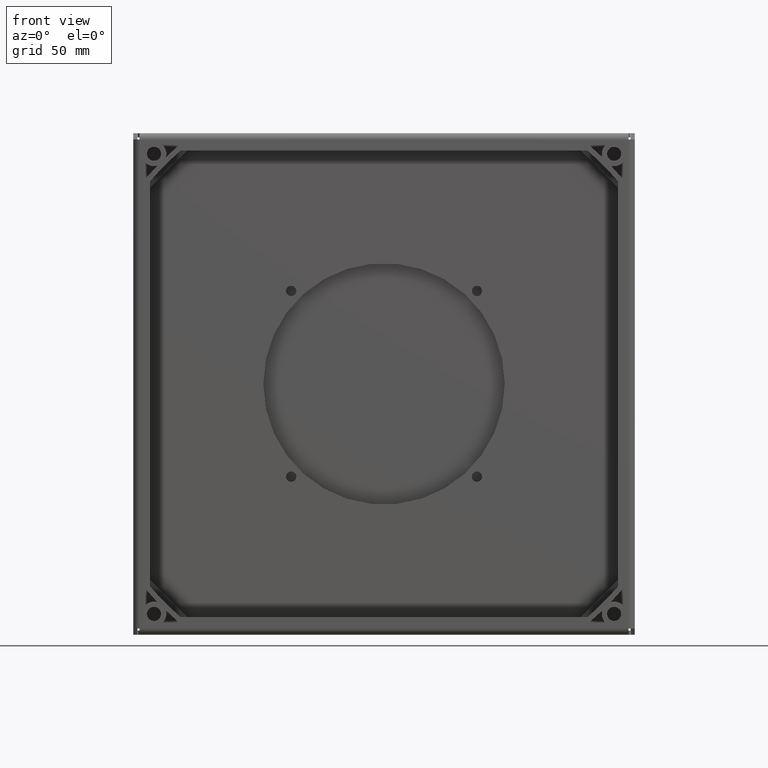
[diagram: clean part render]
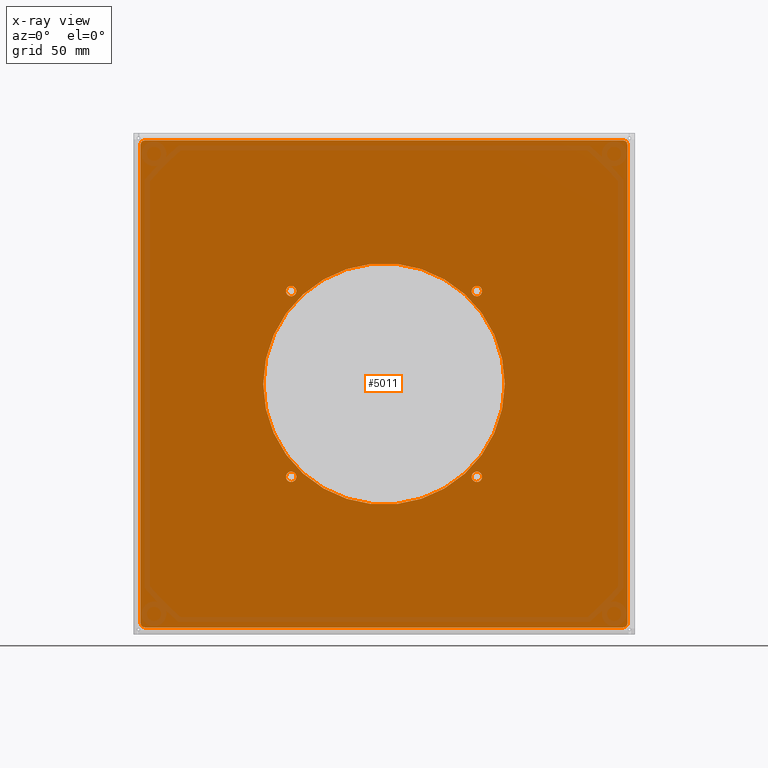
[diagram: x-ray — body ghosted, one internal face saturated and labeled with its STEP entity id]
A machine part, front view, then the same camera in x-ray: the body is ghosted and one INTERNAL B-rep face — a face not visible from any outside direction — is saturated and labeled: STEP entity #5011.
In plain terms, the highlighted planar face has unit normal (0, -1, 0).
Its self-contained STEP definition (entity closure, byte-faithful):
#4642=CARTESIAN_POINT('',(0.E0,0.E0,0.E0));
#4643=DIRECTION('',(0.E0,-1.E0,0.E0));
#4644=DIRECTION('',(1.E0,0.E0,0.E0));
#4645=AXIS2_PLACEMENT_3D('',#4642,#4643,#4644);
#4647=CARTESIAN_POINT('',(0.E0,0.E0,0.E0));
#4648=DIRECTION('',(0.E0,-1.E0,0.E0));
#4649=DIRECTION('',(-1.E0,0.E0,0.E0));
#4650=AXIS2_PLACEMENT_3D('',#4647,#4648,#4649);
#4652=CARTESIAN_POINT('',(-4.5E1,0.E0,-4.5E1));
#4653=DIRECTION('',(0.E0,-1.E0,0.E0));
#4654=DIRECTION('',(1.E0,0.E0,0.E0));
#4655=AXIS2_PLACEMENT_3D('',#4652,#4653,#4654);
#4657=CARTESIAN_POINT('',(-4.5E1,0.E0,-4.5E1));
#4658=DIRECTION('',(0.E0,-1.E0,0.E0));
#4659=DIRECTION('',(-1.E0,0.E0,0.E0));
#4660=AXIS2_PLACEMENT_3D('',#4657,#4658,#4659);
#4662=CARTESIAN_POINT('',(-4.5E1,0.E0,4.5E1));
#4663=DIRECTION('',(0.E0,-1.E0,0.E0));
#4664=DIRECTION('',(1.E0,0.E0,0.E0));
#4665=AXIS2_PLACEMENT_3D('',#4662,#4663,#4664);
#4667=CARTESIAN_POINT('',(-4.5E1,0.E0,4.5E1));
#4668=DIRECTION('',(0.E0,-1.E0,0.E0));
#4669=DIRECTION('',(-1.E0,0.E0,0.E0));
#4670=AXIS2_PLACEMENT_3D('',#4667,#4668,#4669);
#4672=CARTESIAN_POINT('',(4.5E1,0.E0,4.5E1));
#4673=DIRECTION('',(0.E0,-1.E0,0.E0));
#4674=DIRECTION('',(1.E0,0.E0,0.E0));
#4675=AXIS2_PLACEMENT_3D('',#4672,#4673,#4674);
#4677=CARTESIAN_POINT('',(4.5E1,0.E0,4.5E1));
#4678=DIRECTION('',(0.E0,-1.E0,0.E0));
#4679=DIRECTION('',(-1.E0,0.E0,0.E0));
#4680=AXIS2_PLACEMENT_3D('',#4677,#4678,#4679);
#4682=CARTESIAN_POINT('',(4.5E1,0.E0,-4.5E1));
#4683=DIRECTION('',(0.E0,-1.E0,0.E0));
#4684=DIRECTION('',(1.E0,0.E0,0.E0));
#4685=AXIS2_PLACEMENT_3D('',#4682,#4683,#4684);
#4687=CARTESIAN_POINT('',(4.5E1,0.E0,-4.5E1));
#4688=DIRECTION('',(0.E0,-1.E0,0.E0));
#4689=DIRECTION('',(-1.E0,0.E0,0.E0));
#4690=AXIS2_PLACEMENT_3D('',#4687,#4688,#4689);
#4692=CARTESIAN_POINT('',(-1.16E2,0.E0,-1.16E2));
#4693=DIRECTION('',(0.E0,1.E0,0.E0));
#4694=DIRECTION('',(0.E0,0.E0,-1.E0));
#4695=AXIS2_PLACEMENT_3D('',#4692,#4693,#4694);
#4697=DIRECTION('',(0.E0,0.E0,1.E0));
#4698=VECTOR('',#4697,2.32E2);
#4699=CARTESIAN_POINT('',(-1.18E2,0.E0,-1.16E2));
#4700=LINE('',#4699,#4698);
#4701=CARTESIAN_POINT('',(-1.16E2,0.E0,1.16E2));
#4702=DIRECTION('',(0.E0,1.E0,0.E0));
#4703=DIRECTION('',(-1.E0,0.E0,0.E0));
#4704=AXIS2_PLACEMENT_3D('',#4701,#4702,#4703);
#4706=DIRECTION('',(1.E0,0.E0,0.E0));
#4707=VECTOR('',#4706,2.32E2);
#4708=CARTESIAN_POINT('',(-1.16E2,0.E0,1.18E2));
#4709=LINE('',#4708,#4707);
#4710=CARTESIAN_POINT('',(1.16E2,0.E0,1.16E2));
#4711=DIRECTION('',(0.E0,1.E0,0.E0));
#4712=DIRECTION('',(0.E0,0.E0,1.E0));
#4713=AXIS2_PLACEMENT_3D('',#4710,#4711,#4712);
#4715=DIRECTION('',(0.E0,0.E0,-1.E0));
#4716=VECTOR('',#4715,2.32E2);
#4717=CARTESIAN_POINT('',(1.18E2,0.E0,1.16E2));
#4718=LINE('',#4717,#4716);
#4719=CARTESIAN_POINT('',(1.16E2,0.E0,-1.16E2));
#4720=DIRECTION('',(0.E0,1.E0,0.E0));
#4721=DIRECTION('',(1.E0,0.E0,0.E0));
#4722=AXIS2_PLACEMENT_3D('',#4719,#4720,#4721);
#4724=DIRECTION('',(-1.E0,0.E0,0.E0));
#4725=VECTOR('',#4724,2.32E2);
#4726=CARTESIAN_POINT('',(1.16E2,0.E0,-1.18E2));
#4727=LINE('',#4726,#4725);
#4886=CARTESIAN_POINT('',(5.85E1,0.E0,0.E0));
#4887=CARTESIAN_POINT('',(-5.85E1,0.E0,0.E0));
#4888=VERTEX_POINT('',#4886);
#4889=VERTEX_POINT('',#4887);
#4890=CARTESIAN_POINT('',(-4.25E1,0.E0,-4.5E1));
#4891=CARTESIAN_POINT('',(-4.75E1,0.E0,-4.5E1));
#4892=VERTEX_POINT('',#4890);
#4893=VERTEX_POINT('',#4891);
#4894=CARTESIAN_POINT('',(-4.25E1,0.E0,4.5E1));
#4895=CARTESIAN_POINT('',(-4.75E1,0.E0,4.5E1));
#4896=VERTEX_POINT('',#4894);
#4897=VERTEX_POINT('',#4895);
#4898=CARTESIAN_POINT('',(4.75E1,0.E0,4.5E1));
#4899=CARTESIAN_POINT('',(4.25E1,0.E0,4.5E1));
#4900=VERTEX_POINT('',#4898);
#4901=VERTEX_POINT('',#4899);
#4902=CARTESIAN_POINT('',(4.75E1,0.E0,-4.5E1));
#4903=CARTESIAN_POINT('',(4.25E1,0.E0,-4.5E1));
#4904=VERTEX_POINT('',#4902);
#4905=VERTEX_POINT('',#4903);
#4906=CARTESIAN_POINT('',(-1.16E2,0.E0,-1.18E2));
#4907=CARTESIAN_POINT('',(-1.18E2,0.E0,-1.16E2));
#4908=VERTEX_POINT('',#4906);
#4909=VERTEX_POINT('',#4907);
#4910=CARTESIAN_POINT('',(-1.18E2,0.E0,1.16E2));
#4911=VERTEX_POINT('',#4910);
#4912=CARTESIAN_POINT('',(-1.16E2,0.E0,1.18E2));
#4913=VERTEX_POINT('',#4912);
#4914=CARTESIAN_POINT('',(1.16E2,0.E0,1.18E2));
#4915=VERTEX_POINT('',#4914);
#4916=CARTESIAN_POINT('',(1.18E2,0.E0,1.16E2));
#4917=VERTEX_POINT('',#4916);
#4918=CARTESIAN_POINT('',(1.18E2,0.E0,-1.16E2));
#4919=VERTEX_POINT('',#4918);
#4920=CARTESIAN_POINT('',(1.16E2,0.E0,-1.18E2));
#4921=VERTEX_POINT('',#4920);
#4958=CARTESIAN_POINT('',(0.E0,0.E0,0.E0));
#4959=DIRECTION('',(0.E0,1.E0,0.E0));
#4960=DIRECTION('',(1.E0,0.E0,0.E0));
#4961=AXIS2_PLACEMENT_3D('',#4958,#4959,#4960);
#4962=PLANE('',#4961);
#4964=ORIENTED_EDGE('',*,*,#4963,.T.);
#4966=ORIENTED_EDGE('',*,*,#4965,.T.);
#4968=ORIENTED_EDGE('',*,*,#4967,.T.);
#4970=ORIENTED_EDGE('',*,*,#4969,.T.);
#4972=ORIENTED_EDGE('',*,*,#4971,.T.);
#4974=ORIENTED_EDGE('',*,*,#4973,.T.);
#4976=ORIENTED_EDGE('',*,*,#4975,.T.);
#4978=ORIENTED_EDGE('',*,*,#4977,.T.);
#4979=EDGE_LOOP('',(#4964,#4966,#4968,#4970,#4972,#4974,#4976,#4978));
#4980=FACE_OUTER_BOUND('',#4979,.F.);
#4982=ORIENTED_EDGE('',*,*,#4981,.T.);
#4984=ORIENTED_EDGE('',*,*,#4983,.T.);
#4985=EDGE_LOOP('',(#4982,#4984));
#4986=FACE_BOUND('',#4985,.F.);
#4988=ORIENTED_EDGE('',*,*,#4987,.T.);
#4990=ORIENTED_EDGE('',*,*,#4989,.T.);
#4991=EDGE_LOOP('',(#4988,#4990));
#4992=FACE_BOUND('',#4991,.F.);
#4994=ORIENTED_EDGE('',*,*,#4993,.T.);
#4996=ORIENTED_EDGE('',*,*,#4995,.T.);
#4997=EDGE_LOOP('',(#4994,#4996));
#4998=FACE_BOUND('',#4997,.F.);
#5000=ORIENTED_EDGE('',*,*,#4999,.T.);
#5002=ORIENTED_EDGE('',*,*,#5001,.T.);
#5003=EDGE_LOOP('',(#5000,#5002));
#5004=FACE_BOUND('',#5003,.F.);
#5006=ORIENTED_EDGE('',*,*,#5005,.T.);
#5008=ORIENTED_EDGE('',*,*,#5007,.T.);
#5009=EDGE_LOOP('',(#5006,#5008));
#5010=FACE_BOUND('',#5009,.F.);
#4646=CIRCLE('',#4645,5.85E1);
#4651=CIRCLE('',#4650,5.85E1);
#4656=CIRCLE('',#4655,2.5E0);
#4661=CIRCLE('',#4660,2.5E0);
#4666=CIRCLE('',#4665,2.5E0);
#4671=CIRCLE('',#4670,2.5E0);
#4676=CIRCLE('',#4675,2.5E0);
#4681=CIRCLE('',#4680,2.5E0);
#4686=CIRCLE('',#4685,2.5E0);
#4691=CIRCLE('',#4690,2.5E0);
#4696=CIRCLE('',#4695,2.E0);
#4705=CIRCLE('',#4704,2.E0);
#4714=CIRCLE('',#4713,2.E0);
#4723=CIRCLE('',#4722,2.E0);
#4963=EDGE_CURVE('',#4908,#4909,#4696,.T.);
#4965=EDGE_CURVE('',#4909,#4911,#4700,.T.);
#4967=EDGE_CURVE('',#4911,#4913,#4705,.T.);
#4969=EDGE_CURVE('',#4913,#4915,#4709,.T.);
#4971=EDGE_CURVE('',#4915,#4917,#4714,.T.);
#4973=EDGE_CURVE('',#4917,#4919,#4718,.T.);
#4975=EDGE_CURVE('',#4919,#4921,#4723,.T.);
#4977=EDGE_CURVE('',#4921,#4908,#4727,.T.);
#4981=EDGE_CURVE('',#4892,#4893,#4656,.T.);
#4983=EDGE_CURVE('',#4893,#4892,#4661,.T.);
#4987=EDGE_CURVE('',#4896,#4897,#4666,.T.);
#4989=EDGE_CURVE('',#4897,#4896,#4671,.T.);
#4993=EDGE_CURVE('',#4900,#4901,#4676,.T.);
#4995=EDGE_CURVE('',#4901,#4900,#4681,.T.);
#4999=EDGE_CURVE('',#4904,#4905,#4686,.T.);
#5001=EDGE_CURVE('',#4905,#4904,#4691,.T.);
#5005=EDGE_CURVE('',#4888,#4889,#4646,.T.);
#5007=EDGE_CURVE('',#4889,#4888,#4651,.T.);
#5011=ADVANCED_FACE('',(#4980,#4986,#4992,#4998,#5004,#5010),#4962,.F.);